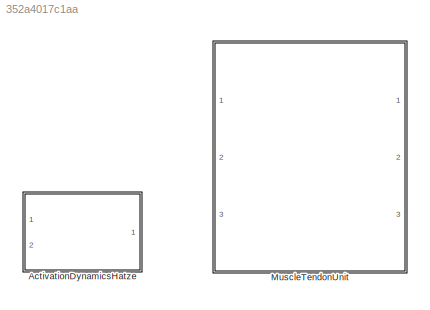
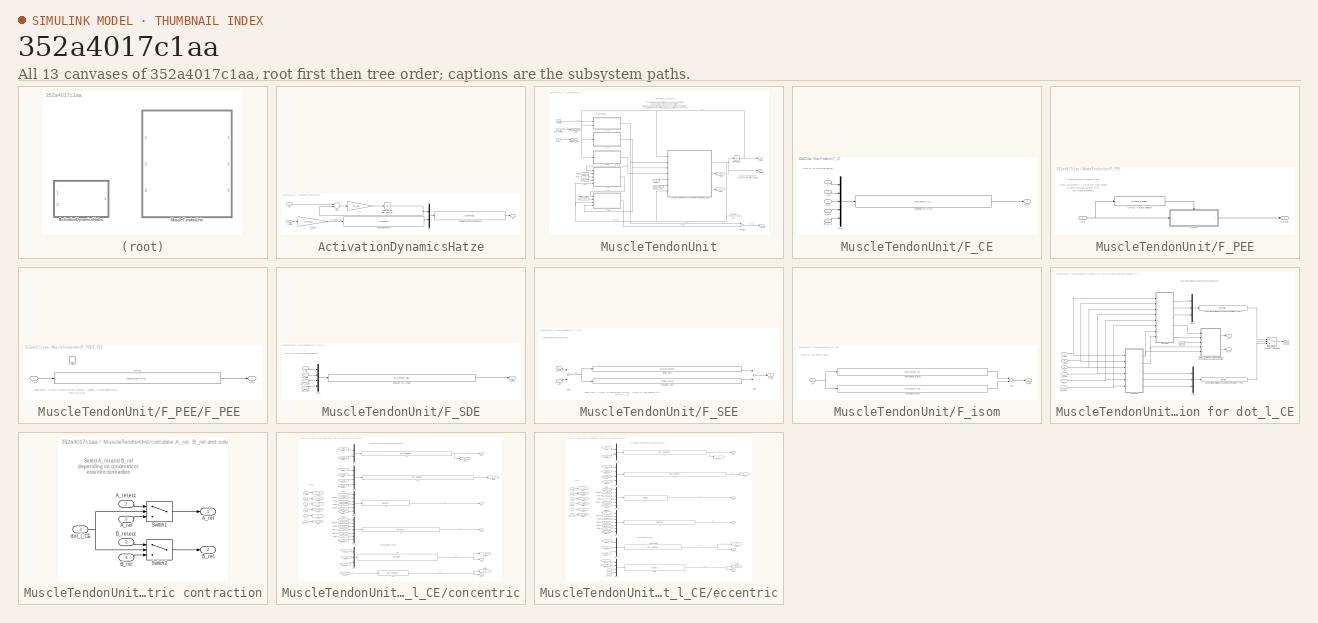
[diagram: thumbnail index - all 13 canvases of the model, root first then tree order]
MODEL slx_352a4017c1aa
KIND library
CONFIG AbsTol = auto
CONFIG EnableMultiTasking = on
CONFIG FixedStep = auto
CONFIG MaxStep = auto
CONFIG MinStep = auto
CONFIG RelTol = 1e-3
CONFIG SampleTimeConstraint = Unconstrained
CONFIG Solver = VariableStepAuto
CONFIG SolverName = VariableStepAuto
CONFIG StartTime = 0.0
CONFIG StopTime = 10.0
BLOCK [SubSystem] ActivationDynamicsHatze
  Ports = [2, 1]
  RequestExecContextInheritance = off
BLOCK [Gain] ActivationDynamicsHatze/1//l_CEopt
  Gain = 1/Mus_Param.CE.l_CEopt
  OutDataTypeStr = Inherit: Inherit via internal rule
  ParamDataTypeStr = Inherit: Inherit via internal rule
  SaturateOnIntegerOverflow = off
BLOCK [Sum] ActivationDynamicsHatze/Add1
  InputSameDT = off
  Inputs = +-
  OutDataTypeStr = Inherit: Inherit via internal rule
  Ports = [2, 1]
  SaturateOnIntegerOverflow = off
BLOCK [Fcn] ActivationDynamicsHatze/Funktion zur Berechnung von a
  Expr = (Act_Param.q_0+(u(2)*u(1))^Act_Param.nu) / (1+(u(2)*u(1))^Act_Param.nu)
BLOCK [Fcn] ActivationDynamicsHatze/Help function for Rho
  Expr = ( (Act_Param.c*Act_Param.eta*(Act_Param.k-1) ) / (Act_Param.k-u) ) * u
BLOCK [Integrator] ActivationDynamicsHatze/Integrator with initial condition u_init
  InitialCondition = Act_Param.u_init
  Ports = [1, 1]
BLOCK [Mux] ActivationDynamicsHatze/Mux
  DisplayOption = bar
  Inputs = 2
  Ports = [2, 1]
BLOCK [Outport] ActivationDynamicsHatze/a []
  IconDisplay = Port number
BLOCK [Inport] ActivationDynamicsHatze/l_CE [m]
  IconDisplay = Port number
  Port = 2
BLOCK [Gain] ActivationDynamicsHatze/m
  Gain = Act_Param.m
  OutDataTypeStr = Inherit: Inherit via internal rule
  ParamDataTypeStr = Inherit: Inherit via internal rule
  SaturateOnIntegerOverflow = off
BLOCK [Inport] ActivationDynamicsHatze/u []
  IconDisplay = Port number
BLOCK [SubSystem] MuscleTendonUnit
  Ports = [3, 3]
  RequestExecContextInheritance = off
BLOCK [SubSystem] MuscleTendonUnit/F_CE
  Ports = [5, 1]
  RequestExecContextInheritance = off
BLOCK [Inport] MuscleTendonUnit/F_CE/A_rel
  IconDisplay = Port number
  Port = 3
BLOCK [Inport] MuscleTendonUnit/F_CE/B_rel
  IconDisplay = Port number
  Port = 4
BLOCK [Outport] MuscleTendonUnit/F_CE/F_CE
  IconDisplay = Port number
BLOCK [Inport] MuscleTendonUnit/F_CE/F_isom
  IconDisplay = Port number
BLOCK [Mux] MuscleTendonUnit/F_CE/Mux
  DisplayOption = bar
  Inputs = 5
  Ports = [5, 1]
BLOCK [Inport] MuscleTendonUnit/F_CE/a
  IconDisplay = Port number
  Port = 2
BLOCK [Inport] MuscleTendonUnit/F_CE/dot_l_CE
  IconDisplay = Port number
  Port = 5
BLOCK [Fcn] MuscleTendonUnit/F_CE/equation for F_CE
  Expr = Mus_Param.CE.F_max * (  ( (u(1)*u(4)+u(2)) / ( 1- (u(5)/(u(3)*Mus_Param.CE.l_CEopt)) ) )-u(2) )
BLOCK [Outport] MuscleTendonUnit/F_MTU [N]
  IconDisplay = Port number
BLOCK [SubSystem] MuscleTendonUnit/F_PEE
  Ports = [1, 1]
  RequestExecContextInheritance = off
BLOCK [Outport] MuscleTendonUnit/F_PEE/F_PEE
  IconDisplay = Port number
BLOCK [SubSystem] MuscleTendonUnit/F_PEE/F_PEE 
  Ports = [1, 1, 1]
  RequestExecContextInheritance = off
BLOCK [EnablePort] MuscleTendonUnit/F_PEE/F_PEE /Enable
  Ports = []
  StatesWhenEnabling = reset
BLOCK [Fcn] MuscleTendonUnit/F_PEE/F_PEE /F_PEE 
  Expr = Mus_Param.PEE.K_PEE*abs(u-Mus_Param.PEE.l_PEE0)^(Mus_Param.PEE.v_PEE)
BLOCK [Outport] MuscleTendonUnit/F_PEE/F_PEE /Out1
  IconDisplay = Port number
  InitialOutput = 0
BLOCK [Inport] MuscleTendonUnit/F_PEE/F_PEE /l_PEE
  IconDisplay = Port number
BLOCK [Inport] MuscleTendonUnit/F_PEE/l_CE
  IconDisplay = Port number
BLOCK [Fcn] MuscleTendonUnit/F_PEE/l_PEE > slack length?
  Expr = (u>=Mus_Param.PEE.l_PEE0)
BLOCK [SubSystem] MuscleTendonUnit/F_SDE
  Ports = [4, 1]
  RequestExecContextInheritance = off
BLOCK [Inport] MuscleTendonUnit/F_SDE/F_CE
  IconDisplay = Port number
BLOCK [Inport] MuscleTendonUnit/F_SDE/F_PEE
  IconDisplay = Port number
  Port = 4
BLOCK [Outport] MuscleTendonUnit/F_SDE/F_SDE
  IconDisplay = Port number
BLOCK [Mux] MuscleTendonUnit/F_SDE/Mux
  DisplayOption = bar
  Ports = [4, 1]
BLOCK [Inport] MuscleTendonUnit/F_SDE/dot_l_CE
  IconDisplay = Port number
  Port = 3
BLOCK [Inport] MuscleTendonUnit/F_SDE/dot_l_MTC
  IconDisplay = Port number
  Port = 2
BLOCK [Fcn] MuscleTendonUnit/F_SDE/equation for F_SDE
  Expr = Mus_Param.SDE.d_SEmax*((1-Mus_Param.SDE.R_SE)*((u(1)+u(2))/Mus_Param.CE.F_max)+Mus_Param.SDE.R_SE)*(u(3)-u(4))
BLOCK [SubSystem] MuscleTendonUnit/F_SEE
  Ports = [2, 1]
  RequestExecContextInheritance = off
BLOCK [Sum] MuscleTendonUnit/F_SEE/Add
  InputSameDT = off
  OutDataTypeStr = Inherit: Inherit via internal rule
  Ports = [2, 1]
  SaturateOnIntegerOverflow = off
BLOCK [Sum] MuscleTendonUnit/F_SEE/Add1
  InputSameDT = off
  Inputs = +-
  OutDataTypeStr = Inherit: Inherit via internal rule
  Ports = [2, 1]
  SaturateOnIntegerOverflow = off
BLOCK [Outport] MuscleTendonUnit/F_SEE/F_SEE
  IconDisplay = Port number
BLOCK [Inport] MuscleTendonUnit/F_SEE/l_CE
  IconDisplay = Port number
  Port = 2
BLOCK [Inport] MuscleTendonUnit/F_SEE/l_MTC
  IconDisplay = Port number
BLOCK [Fcn] MuscleTendonUnit/F_SEE/linear part
  Expr = (u>=Mus_Param.SEE.l_SEEnll)   *   (Mus_Param.SEE.DeltaF_SEE0+Mus_Param.SEE.KSEEl*(u-Mus_Param.SEE.l_SEEnll))
BLOCK [Fcn] MuscleTendonUnit/F_SEE/non-linear part
  Expr = (u>Mus_Param.SEE.l_SEE0)*(u<Mus_Param.SEE.l_SEEnll)  *  Mus_Param.SEE.KSEEnl*(abs(u-Mus_Param.SEE.l_SEE0)^(Mus_Param.SEE.v_SEE))
BLOCK [SubSystem] MuscleTendonUnit/F_isom
  Ports = [1, 1]
  RequestExecContextInheritance = off
BLOCK [Sum] MuscleTendonUnit/F_isom/Add
  InputSameDT = off
  OutDataTypeStr = Inherit: Inherit via internal rule
  Ports = [2, 1]
  SaturateOnIntegerOverflow = off
BLOCK [Outport] MuscleTendonUnit/F_isom/F_isom
  IconDisplay = Port number
BLOCK [Fcn] MuscleTendonUnit/F_isom/ascending branch
  Expr = (Mus_Param.CE.l_CEopt>u)   *   ( exp( -( abs(  ((u/Mus_Param.CE.l_CEopt)-1)/Mus_Param.CE.DeltaW_limb_asc  ) )^Mus_Param.CE.v_CElimb_asc ) )
BLOCK [Fcn] MuscleTendonUnit/F_isom/descending branch
  Expr = (Mus_Param.CE.l_CEopt<=u)   *   ( exp( -( abs(  ((u/Mus_Param.CE.l_CEopt)-1)/Mus_Param.CE.DeltaW_limb_des  ) )^Mus_Param.CE.v_CElimb_des ) )
BLOCK [Inport] MuscleTendonUnit/F_isom/l_CE
  IconDisplay = Port number
BLOCK [From] MuscleTendonUnit/From
  GotoTag = A_rel
BLOCK [From] MuscleTendonUnit/From dot_l_MTC
  GotoTag = dot_l_MTC
BLOCK [From] MuscleTendonUnit/From dot_l_MTC1
  GotoTag = dot_l_MTC
BLOCK [From] MuscleTendonUnit/From q
  GotoTag = a
BLOCK [From] MuscleTendonUnit/From q1
  GotoTag = a
BLOCK [From] MuscleTendonUnit/From1
  GotoTag = B_rel
BLOCK [Goto] MuscleTendonUnit/Goto
  GotoTag = A_rel
BLOCK [Goto] MuscleTendonUnit/Goto dot_l_MTC
  GotoTag = a
BLOCK [Goto] MuscleTendonUnit/Goto q
  GotoTag = dot_l_MTC
BLOCK [Goto] MuscleTendonUnit/Goto1
  GotoTag = B_rel
BLOCK [Integrator] MuscleTendonUnit/Integrator l_CE
  InitialCondition = Mus_Param.CE.l_CE_init
  Ports = [1, 1]
BLOCK [Sum] MuscleTendonUnit/MTC force
  InputSameDT = off
  OutDataTypeStr = Inherit: Inherit via internal rule
  Ports = [2, 1]
  SaturateOnIntegerOverflow = off
BLOCK [Inport] MuscleTendonUnit/a []
  IconDisplay = Port number
  Port = 3
BLOCK [SubSystem] MuscleTendonUnit/calculate A_rel, B_rel and solve quadratic equation for dot_l_CE
  Ports = [7, 3]
  RequestExecContextInheritance = off
BLOCK [Outport] MuscleTendonUnit/calculate A_rel, B_rel and solve quadratic equation for dot_l_CE/A_rel
  IconDisplay = Port number
  Port = 2
BLOCK [Outport] MuscleTendonUnit/calculate A_rel, B_rel and solve quadratic equation for dot_l_CE/B_rel
  IconDisplay = Port number
  Port = 3
BLOCK [Inport] MuscleTendonUnit/calculate A_rel, B_rel and solve quadratic equation for dot_l_CE/F_PEE
  IconDisplay = Port number
  Port = 3
BLOCK [Inport] MuscleTendonUnit/calculate A_rel, B_rel and solve quadratic equation for dot_l_CE/F_SEE
  IconDisplay = Port number
  Port = 2
BLOCK [Inport] MuscleTendonUnit/calculate A_rel, B_rel and solve quadratic equation for dot_l_CE/F_isom
  IconDisplay = Port number
  Port = 4
BLOCK [Mux] MuscleTendonUnit/calculate A_rel, B_rel and solve quadratic equation for dot_l_CE/Mux1
  DisplayOption = bar
  Inputs = 3
  Ports = [3, 1]
BLOCK [Mux] MuscleTendonUnit/calculate A_rel, B_rel and solve quadratic equation for dot_l_CE/Mux2
  DisplayOption = bar
  Inputs = 3
  Ports = [3, 1]
BLOCK [SubSystem] MuscleTendonUnit/calculate A_rel, B_rel and solve quadratic equation for dot_l_CE/Select A_rel and B_rel depending on concentric or eccentric contraction
  Ports = [5, 2]
  RequestExecContextInheritance = off
BLOCK [Outport] MuscleTendonUnit/calculate A_rel, B_rel and solve quadratic equation for dot_l_CE/Select A_rel and B_rel depending on concentric or eccentric contraction/ A_rel
  IconDisplay = Port number
BLOCK [Inport] MuscleTendonUnit/calculate A_rel, B_rel and solve quadratic equation for dot_l_CE/Select A_rel and B_rel depending on concentric or eccentric contraction/A_rel
  IconDisplay = Port number
  Port = 5
BLOCK [Inport] MuscleTendonUnit/calculate A_rel, B_rel and solve quadratic equation for dot_l_CE/Select A_rel and B_rel depending on concentric or eccentric contraction/A_rel,ecc
  IconDisplay = Port number
BLOCK [Inport] MuscleTendonUnit/calculate A_rel, B_rel and solve quadratic equation for dot_l_CE/Select A_rel and B_rel depending on concentric or eccentric contraction/B_rel
  IconDisplay = Port number
  Port = 4
BLOCK [Outport] MuscleTendonUnit/calculate A_rel, B_rel and solve quadratic equation for dot_l_CE/Select A_rel and B_rel depending on concentric or eccentric contraction/B_rel 
  IconDisplay = Port number
  Port = 2
BLOCK [Inport] MuscleTendonUnit/calculate A_rel, B_rel and solve quadratic equation for dot_l_CE/Select A_rel and B_rel depending on concentric or eccentric contraction/B_rel,ecc
  IconDisplay = Port number
  Port = 2
BLOCK [Switch] MuscleTendonUnit/calculate A_rel, B_rel and solve quadratic equation for dot_l_CE/Select A_rel and B_rel depending on concentric or eccentric contraction/Switch1
  Criteria = u2 > Threshold
  InputSameDT = off
  SaturateOnIntegerOverflow = off
  ZeroCross = off
BLOCK [Switch] MuscleTendonUnit/calculate A_rel, B_rel and solve quadratic equation for dot_l_CE/Select A_rel and B_rel depending on concentric or eccentric contraction/Switch2
  Criteria = u2 > Threshold
  InputSameDT = off
  SaturateOnIntegerOverflow = off
  ZeroCross = off
BLOCK [Inport] MuscleTendonUnit/calculate A_rel, B_rel and solve quadratic equation for dot_l_CE/Select A_rel and B_rel depending on concentric or eccentric contraction/dot_l_CE
  IconDisplay = Port number
  Port = 3
BLOCK [Inport] MuscleTendonUnit/calculate A_rel, B_rel and solve quadratic equation for dot_l_CE/a 
  IconDisplay = Port number
  Port = 5
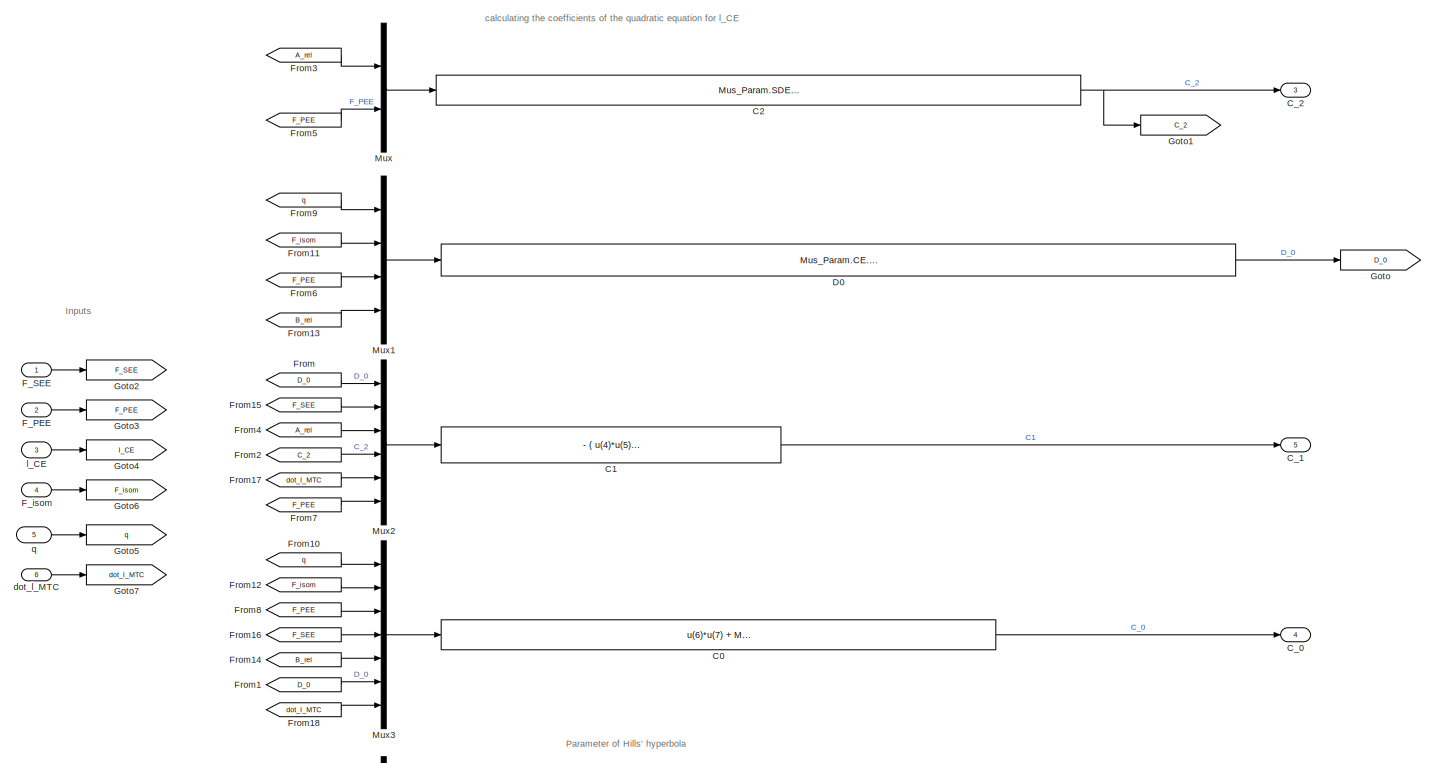
[diagram: MuscleTendonUnit/calculate A_rel, B_rel and solve quadratic equation for dot_l_CE/concentric - part 1/2, most of the canvas]
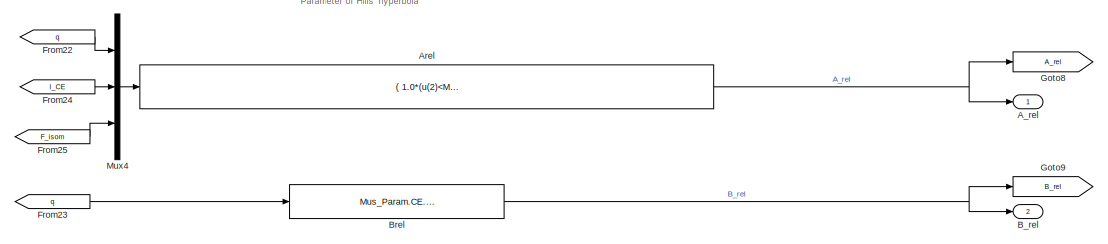
[diagram: MuscleTendonUnit/calculate A_rel, B_rel and solve quadratic equation for dot_l_CE/concentric - part 2/2, full width, bottom band]
BLOCK [SubSystem] MuscleTendonUnit/calculate A_rel, B_rel and solve quadratic equation for dot_l_CE/concentric
  Ports = [6, 5]
  RequestExecContextInheritance = off
BLOCK [Outport] MuscleTendonUnit/calculate A_rel, B_rel and solve quadratic equation for dot_l_CE/concentric/A_rel
  IconDisplay = Port number
BLOCK [Fcn] MuscleTendonUnit/calculate A_rel, B_rel and solve quadratic equation for dot_l_CE/concentric/Arel
  Expr = ( 1.0*(u(2)<Mus_Param.CE.l_CEopt) + u(3)*(u(2)>=Mus_Param.CE.l_CEopt) )*Mus_Param.CE.A_rel0*1/4*(1+3*u(1))
BLOCK [Outport] MuscleTendonUnit/calculate A_rel, B_rel and solve quadratic equation for dot_l_CE/concentric/B_rel
  IconDisplay = Port number
  Port = 2
BLOCK [Fcn] MuscleTendonUnit/calculate A_rel, B_rel and solve quadratic equation for dot_l_CE/concentric/Brel
  Expr = Mus_Param.CE.B_rel0*1*1/7*(3+4*u)
BLOCK [Fcn] MuscleTendonUnit/calculate A_rel, B_rel and solve quadratic equation for dot_l_CE/concentric/C0
  Expr = u(6)*u(7) + Mus_Param.CE.l_CEopt * u(5) * ( u(4) - u(3) - Mus_Param.CE.F_max*u(1)*u(2) )
BLOCK [Fcn] MuscleTendonUnit/calculate A_rel, B_rel and solve quadratic equation for dot_l_CE/concentric/C1
  Expr = - ( u(4)*u(5) + u(1) + u(2) - u(6) + (Mus_Param.CE.F_max*u(3)) )
BLOCK [Fcn] MuscleTendonUnit/calculate A_rel, B_rel and solve quadratic equation for dot_l_CE/concentric/C2
  Expr = Mus_Param.SDE.d_SEmax * ( Mus_Param.SDE.R_SE - ( u(1) - u(2)/Mus_Param.CE.F_max ) * (1 - Mus_Param.SDE.R_SE) )
BLOCK [Outport] MuscleTendonUnit/calculate A_rel, B_rel and solve quadratic equation for dot_l_CE/concentric/C_0 
  IconDisplay = Port number
  Port = 4
BLOCK [Outport] MuscleTendonUnit/calculate A_rel, B_rel and solve quadratic equation for dot_l_CE/concentric/C_1 
  IconDisplay = Port number
  Port = 5
BLOCK [Outport] MuscleTendonUnit/calculate A_rel, B_rel and solve quadratic equation for dot_l_CE/concentric/C_2 
  IconDisplay = Port number
  Port = 3
BLOCK [Fcn] MuscleTendonUnit/calculate A_rel, B_rel and solve quadratic equation for dot_l_CE/concentric/D0 
  Expr = Mus_Param.CE.l_CEopt * u(4) * Mus_Param.SDE.d_SEmax * ( Mus_Param.SDE.R_SE + (1-Mus_Param.SDE.R_SE) * ( u(1) * u(2) + u(3)/Mus_Param.CE.F_max ) )
BLOCK [Inport] MuscleTendonUnit/calculate A_rel, B_rel and solve quadratic equation for dot_l_CE/concentric/F_PEE
  IconDisplay = Port number
  Port = 2
BLOCK [Inport] MuscleTendonUnit/calculate A_rel, B_rel and solve quadratic equation for dot_l_CE/concentric/F_SEE
  IconDisplay = Port number
BLOCK [Inport] MuscleTendonUnit/calculate A_rel, B_rel and solve quadratic equation for dot_l_CE/concentric/F_isom
  IconDisplay = Port number
  Port = 4
BLOCK [From] MuscleTendonUnit/calculate A_rel, B_rel and solve quadratic equation for dot_l_CE/concentric/From
  GotoTag = D_0
BLOCK [From] MuscleTendonUnit/calculate A_rel, B_rel and solve quadratic equation for dot_l_CE/concentric/From1
  GotoTag = D_0
BLOCK [From] MuscleTendonUnit/calculate A_rel, B_rel and solve quadratic equation for dot_l_CE/concentric/From10
  GotoTag = q
BLOCK [From] MuscleTendonUnit/calculate A_rel, B_rel and solve quadratic equation for dot_l_CE/concentric/From11
  GotoTag = F_isom
BLOCK [From] MuscleTendonUnit/calculate A_rel, B_rel and solve quadratic equation for dot_l_CE/concentric/From12
  GotoTag = F_isom
BLOCK [From] MuscleTendonUnit/calculate A_rel, B_rel and solve quadratic equation for dot_l_CE/concentric/From13
  GotoTag = B_rel
BLOCK [From] MuscleTendonUnit/calculate A_rel, B_rel and solve quadratic equation for dot_l_CE/concentric/From14
  GotoTag = B_rel
BLOCK [From] MuscleTendonUnit/calculate A_rel, B_rel and solve quadratic equation for dot_l_CE/concentric/From15
  GotoTag = F_SEE
BLOCK [From] MuscleTendonUnit/calculate A_rel, B_rel and solve quadratic equation for dot_l_CE/concentric/From16
  GotoTag = F_SEE
BLOCK [From] MuscleTendonUnit/calculate A_rel, B_rel and solve quadratic equation for dot_l_CE/concentric/From17
  GotoTag = dot_l_MTC
BLOCK [From] MuscleTendonUnit/calculate A_rel, B_rel and solve quadratic equation for dot_l_CE/concentric/From18
  GotoTag = dot_l_MTC
BLOCK [From] MuscleTendonUnit/calculate A_rel, B_rel and solve quadratic equation for dot_l_CE/concentric/From2
  GotoTag = C_2
BLOCK [From] MuscleTendonUnit/calculate A_rel, B_rel and solve quadratic equation for dot_l_CE/concentric/From22
  GotoTag = q
BLOCK [From] MuscleTendonUnit/calculate A_rel, B_rel and solve quadratic equation for dot_l_CE/concentric/From23
  GotoTag = q
BLOCK [From] MuscleTendonUnit/calculate A_rel, B_rel and solve quadratic equation for dot_l_CE/concentric/From24
  GotoTag = l_CE
BLOCK [From] MuscleTendonUnit/calculate A_rel, B_rel and solve quadratic equation for dot_l_CE/concentric/From25
  GotoTag = F_isom
BLOCK [From] MuscleTendonUnit/calculate A_rel, B_rel and solve quadratic equation for dot_l_CE/concentric/From3
  GotoTag = A_rel
BLOCK [From] MuscleTendonUnit/calculate A_rel, B_rel and solve quadratic equation for dot_l_CE/concentric/From4
  GotoTag = A_rel
BLOCK [From] MuscleTendonUnit/calculate A_rel, B_rel and solve quadratic equation for dot_l_CE/concentric/From5
  GotoTag = F_PEE
BLOCK [From] MuscleTendonUnit/calculate A_rel, B_rel and solve quadratic equation for dot_l_CE/concentric/From6
  GotoTag = F_PEE
BLOCK [From] MuscleTendonUnit/calculate A_rel, B_rel and solve quadratic equation for dot_l_CE/concentric/From7
  GotoTag = F_PEE
BLOCK [From] MuscleTendonUnit/calculate A_rel, B_rel and solve quadratic equation for dot_l_CE/concentric/From8
  GotoTag = F_PEE
BLOCK [From] MuscleTendonUnit/calculate A_rel, B_rel and solve quadratic equation for dot_l_CE/concentric/From9
  GotoTag = q
BLOCK [Goto] MuscleTendonUnit/calculate A_rel, B_rel and solve quadratic equation for dot_l_CE/concentric/Goto
  GotoTag = D_0
BLOCK [Goto] MuscleTendonUnit/calculate A_rel, B_rel and solve quadratic equation for dot_l_CE/concentric/Goto1
  GotoTag = C_2
BLOCK [Goto] MuscleTendonUnit/calculate A_rel, B_rel and solve quadratic equation for dot_l_CE/concentric/Goto2
  GotoTag = F_SEE
BLOCK [Goto] MuscleTendonUnit/calculate A_rel, B_rel and solve quadratic equation for dot_l_CE/concentric/Goto3
  GotoTag = F_PEE
BLOCK [Goto] MuscleTendonUnit/calculate A_rel, B_rel and solve quadratic equation for dot_l_CE/concentric/Goto4
  GotoTag = l_CE
BLOCK [Goto] MuscleTendonUnit/calculate A_rel, B_rel and solve quadratic equation for dot_l_CE/concentric/Goto5
  GotoTag = q
BLOCK [Goto] MuscleTendonUnit/calculate A_rel, B_rel and solve quadratic equation for dot_l_CE/concentric/Goto6
  GotoTag = F_isom
BLOCK [Goto] MuscleTendonUnit/calculate A_rel, B_rel and solve quadratic equation for dot_l_CE/concentric/Goto7
  GotoTag = dot_l_MTC
BLOCK [Goto] MuscleTendonUnit/calculate A_rel, B_rel and solve quadratic equation for dot_l_CE/concentric/Goto8
  GotoTag = A_rel
BLOCK [Goto] MuscleTendonUnit/calculate A_rel, B_rel and solve quadratic equation for dot_l_CE/concentric/Goto9
  GotoTag = B_rel
BLOCK [Mux] MuscleTendonUnit/calculate A_rel, B_rel and solve quadratic equation for dot_l_CE/concentric/Mux
  DisplayOption = bar
  Inputs = 2
  Ports = [2, 1]
BLOCK [Mux] MuscleTendonUnit/calculate A_rel, B_rel and solve quadratic equation for dot_l_CE/concentric/Mux1
  DisplayOption = bar
  Ports = [4, 1]
BLOCK [Mux] MuscleTendonUnit/calculate A_rel, B_rel and solve quadratic equation for dot_l_CE/concentric/Mux2
  DisplayOption = bar
  Inputs = 6
  Ports = [6, 1]
BLOCK [Mux] MuscleTendonUnit/calculate A_rel, B_rel and solve quadratic equation for dot_l_CE/concentric/Mux3
  DisplayOption = bar
  Inputs = 7
  Ports = [7, 1]
BLOCK [Mux] MuscleTendonUnit/calculate A_rel, B_rel and solve quadratic equation for dot_l_CE/concentric/Mux4
  DisplayOption = bar
  Inputs = 3
  Ports = [3, 1]
BLOCK [Inport] MuscleTendonUnit/calculate A_rel, B_rel and solve quadratic equation for dot_l_CE/concentric/dot_l_MTC
  IconDisplay = Port number
  Port = 6
BLOCK [Inport] MuscleTendonUnit/calculate A_rel, B_rel and solve quadratic equation for dot_l_CE/concentric/l_CE
  IconDisplay = Port number
  Port = 3
BLOCK [Inport] MuscleTendonUnit/calculate A_rel, B_rel and solve quadratic equation for dot_l_CE/concentric/q
  IconDisplay = Port number
  Port = 5
BLOCK [Inport] MuscleTendonUnit/calculate A_rel, B_rel and solve quadratic equation for dot_l_CE/dot_l_CE
  IconDisplay = Port number
  Port = 7
BLOCK [Outport] MuscleTendonUnit/calculate A_rel, B_rel and solve quadratic equation for dot_l_CE/dot_l_CE 
  IconDisplay = Port number
BLOCK [Switch] MuscleTendonUnit/calculate A_rel, B_rel and solve quadratic equation for dot_l_CE/dot_l_CE > 0 -> eccentric contraction
  Criteria = u2 > Threshold
  InputSameDT = off
  SaturateOnIntegerOverflow = off
  ZeroCross = off
BLOCK [Inport] MuscleTendonUnit/calculate A_rel, B_rel and solve quadratic equation for dot_l_CE/dot_l_MTC
  IconDisplay = Port number
  Port = 6
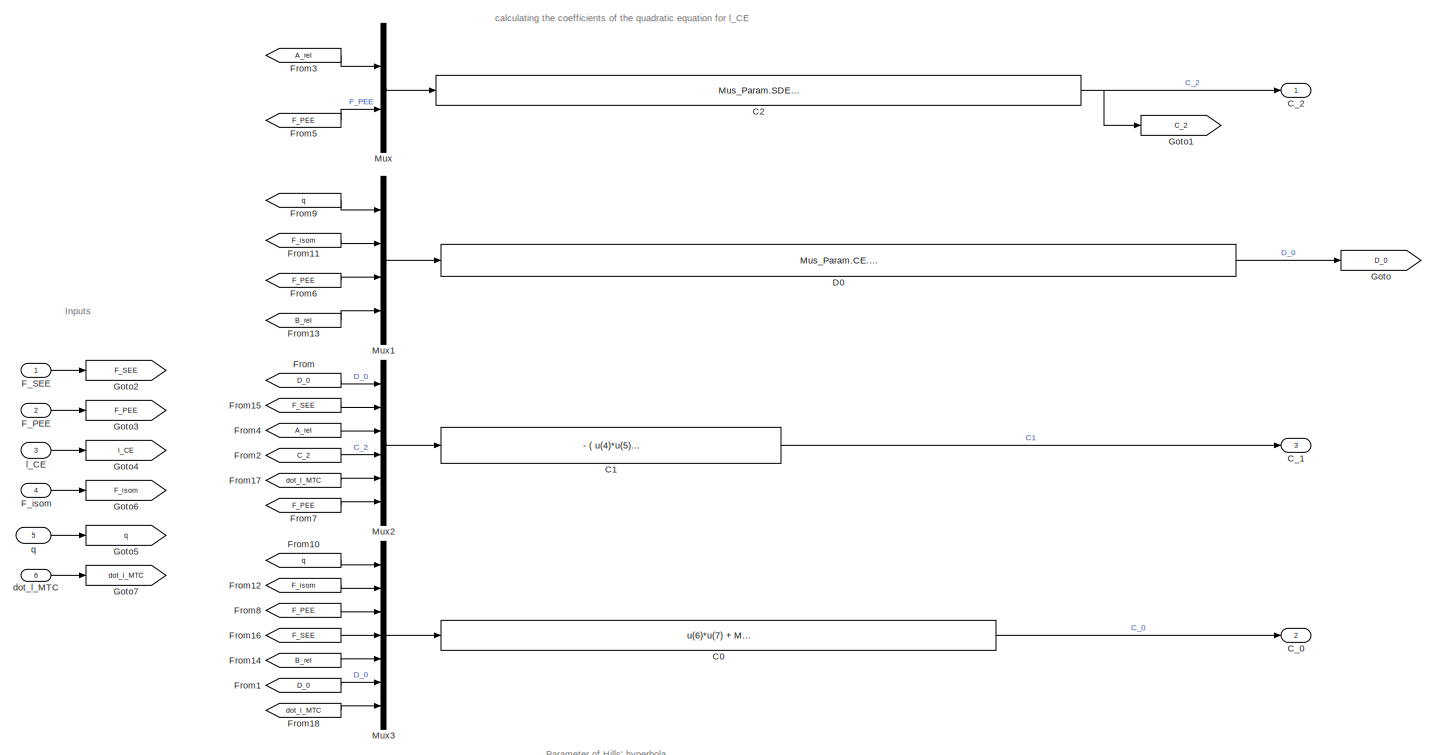
[diagram: MuscleTendonUnit/calculate A_rel, B_rel and solve quadratic equation for dot_l_CE/eccentric - part 1/2, full width, middle band]
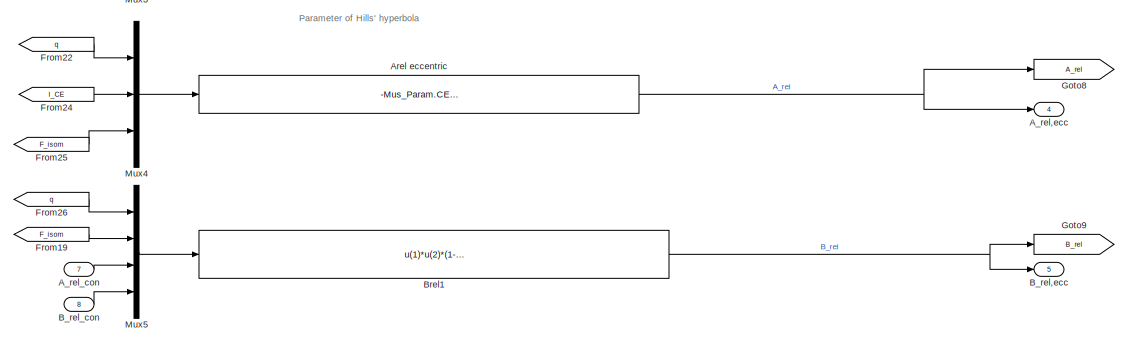
[diagram: MuscleTendonUnit/calculate A_rel, B_rel and solve quadratic equation for dot_l_CE/eccentric - part 2/2, full width, bottom band]
BLOCK [SubSystem] MuscleTendonUnit/calculate A_rel, B_rel and solve quadratic equation for dot_l_CE/eccentric
  Ports = [8, 5]
  RequestExecContextInheritance = off
BLOCK [Outport] MuscleTendonUnit/calculate A_rel, B_rel and solve quadratic equation for dot_l_CE/eccentric/A_rel,ecc
  IconDisplay = Port number
  Port = 4
BLOCK [Inport] MuscleTendonUnit/calculate A_rel, B_rel and solve quadratic equation for dot_l_CE/eccentric/A_rel_con
  IconDisplay = Port number
  Port = 7
BLOCK [Fcn] MuscleTendonUnit/calculate A_rel, B_rel and solve quadratic equation for dot_l_CE/eccentric/Arel eccentric
  Expr = -Mus_Param.CE.F_eccentric*u(1)*u(3)
BLOCK [Outport] MuscleTendonUnit/calculate A_rel, B_rel and solve quadratic equation for dot_l_CE/eccentric/B_rel,ecc
  IconDisplay = Port number
  Port = 5
BLOCK [Inport] MuscleTendonUnit/calculate A_rel, B_rel and solve quadratic equation for dot_l_CE/eccentric/B_rel_con
  IconDisplay = Port number
  Port = 8
BLOCK [Fcn] MuscleTendonUnit/calculate A_rel, B_rel and solve quadratic equation for dot_l_CE/eccentric/Brel1
  Expr = u(1)*u(2)*(1-Mus_Param.CE.F_eccentric)/(u(1)*u(2)+u(3))*u(4)/Mus_Param.CE.S_eccentric
BLOCK [Fcn] MuscleTendonUnit/calculate A_rel, B_rel and solve quadratic equation for dot_l_CE/eccentric/C0
  Expr = u(6)*u(7) + Mus_Param.CE.l_CEopt * u(5) * ( u(4) - u(3) - Mus_Param.CE.F_max*u(1)*u(2) )
BLOCK [Fcn] MuscleTendonUnit/calculate A_rel, B_rel and solve quadratic equation for dot_l_CE/eccentric/C1
  Expr = - ( u(4)*u(5) + u(1) + u(2) - u(6) + (Mus_Param.CE.F_max*u(3)) )
BLOCK [Fcn] MuscleTendonUnit/calculate A_rel, B_rel and solve quadratic equation for dot_l_CE/eccentric/C2
  Expr = Mus_Param.SDE.d_SEmax * ( Mus_Param.SDE.R_SE - ( u(1) - u(2)/Mus_Param.CE.F_max ) * (1 - Mus_Param.SDE.R_SE) )
BLOCK [Outport] MuscleTendonUnit/calculate A_rel, B_rel and solve quadratic equation for dot_l_CE/eccentric/C_0
  IconDisplay = Port number
  Port = 2
BLOCK [Outport] MuscleTendonUnit/calculate A_rel, B_rel and solve quadratic equation for dot_l_CE/eccentric/C_1
  IconDisplay = Port number
  Port = 3
BLOCK [Outport] MuscleTendonUnit/calculate A_rel, B_rel and solve quadratic equation for dot_l_CE/eccentric/C_2
  IconDisplay = Port number
BLOCK [Fcn] MuscleTendonUnit/calculate A_rel, B_rel and solve quadratic equation for dot_l_CE/eccentric/D0 
  Expr = Mus_Param.CE.l_CEopt * u(4) * Mus_Param.SDE.d_SEmax * ( Mus_Param.SDE.R_SE + (1-Mus_Param.SDE.R_SE) * ( u(1) * u(2) + u(3)/Mus_Param.CE.F_max ) )
BLOCK [Inport] MuscleTendonUnit/calculate A_rel, B_rel and solve quadratic equation for dot_l_CE/eccentric/F_PEE
  IconDisplay = Port number
  Port = 2
BLOCK [Inport] MuscleTendonUnit/calculate A_rel, B_rel and solve quadratic equation for dot_l_CE/eccentric/F_SEE
  IconDisplay = Port number
BLOCK [Inport] MuscleTendonUnit/calculate A_rel, B_rel and solve quadratic equation for dot_l_CE/eccentric/F_isom
  IconDisplay = Port number
  Port = 4
BLOCK [From] MuscleTendonUnit/calculate A_rel, B_rel and solve quadratic equation for dot_l_CE/eccentric/From
  GotoTag = D_0
BLOCK [From] MuscleTendonUnit/calculate A_rel, B_rel and solve quadratic equation for dot_l_CE/eccentric/From1
  GotoTag = D_0
BLOCK [From] MuscleTendonUnit/calculate A_rel, B_rel and solve quadratic equation for dot_l_CE/eccentric/From10
  GotoTag = q
BLOCK [From] MuscleTendonUnit/calculate A_rel, B_rel and solve quadratic equation for dot_l_CE/eccentric/From11
  GotoTag = F_isom
BLOCK [From] MuscleTendonUnit/calculate A_rel, B_rel and solve quadratic equation for dot_l_CE/eccentric/From12
  GotoTag = F_isom
BLOCK [From] MuscleTendonUnit/calculate A_rel, B_rel and solve quadratic equation for dot_l_CE/eccentric/From13
  GotoTag = B_rel
BLOCK [From] MuscleTendonUnit/calculate A_rel, B_rel and solve quadratic equation for dot_l_CE/eccentric/From14
  GotoTag = B_rel
BLOCK [From] MuscleTendonUnit/calculate A_rel, B_rel and solve quadratic equation for dot_l_CE/eccentric/From15
  GotoTag = F_SEE
BLOCK [From] MuscleTendonUnit/calculate A_rel, B_rel and solve quadratic equation for dot_l_CE/eccentric/From16
  GotoTag = F_SEE
BLOCK [From] MuscleTendonUnit/calculate A_rel, B_rel and solve quadratic equation for dot_l_CE/eccentric/From17
  GotoTag = dot_l_MTC
BLOCK [From] MuscleTendonUnit/calculate A_rel, B_rel and solve quadratic equation for dot_l_CE/eccentric/From18
  GotoTag = dot_l_MTC
BLOCK [From] MuscleTendonUnit/calculate A_rel, B_rel and solve quadratic equation for dot_l_CE/eccentric/From19
  GotoTag = F_isom
BLOCK [From] MuscleTendonUnit/calculate A_rel, B_rel and solve quadratic equation for dot_l_CE/eccentric/From2
  GotoTag = C_2
BLOCK [From] MuscleTendonUnit/calculate A_rel, B_rel and solve quadratic equation for dot_l_CE/eccentric/From22
  GotoTag = q
BLOCK [From] MuscleTendonUnit/calculate A_rel, B_rel and solve quadratic equation for dot_l_CE/eccentric/From24
  GotoTag = l_CE
BLOCK [From] MuscleTendonUnit/calculate A_rel, B_rel and solve quadratic equation for dot_l_CE/eccentric/From25
  GotoTag = F_isom
BLOCK [From] MuscleTendonUnit/calculate A_rel, B_rel and solve quadratic equation for dot_l_CE/eccentric/From26
  GotoTag = q
BLOCK [From] MuscleTendonUnit/calculate A_rel, B_rel and solve quadratic equation for dot_l_CE/eccentric/From3
  GotoTag = A_rel
BLOCK [From] MuscleTendonUnit/calculate A_rel, B_rel and solve quadratic equation for dot_l_CE/eccentric/From4
  GotoTag = A_rel
BLOCK [From] MuscleTendonUnit/calculate A_rel, B_rel and solve quadratic equation for dot_l_CE/eccentric/From5
  GotoTag = F_PEE
BLOCK [From] MuscleTendonUnit/calculate A_rel, B_rel and solve quadratic equation for dot_l_CE/eccentric/From6
  GotoTag = F_PEE
BLOCK [From] MuscleTendonUnit/calculate A_rel, B_rel and solve quadratic equation for dot_l_CE/eccentric/From7
  GotoTag = F_PEE
BLOCK [From] MuscleTendonUnit/calculate A_rel, B_rel and solve quadratic equation for dot_l_CE/eccentric/From8
  GotoTag = F_PEE
BLOCK [From] MuscleTendonUnit/calculate A_rel, B_rel and solve quadratic equation for dot_l_CE/eccentric/From9
  GotoTag = q
BLOCK [Goto] MuscleTendonUnit/calculate A_rel, B_rel and solve quadratic equation for dot_l_CE/eccentric/Goto
  GotoTag = D_0
BLOCK [Goto] MuscleTendonUnit/calculate A_rel, B_rel and solve quadratic equation for dot_l_CE/eccentric/Goto1
  GotoTag = C_2
BLOCK [Goto] MuscleTendonUnit/calculate A_rel, B_rel and solve quadratic equation for dot_l_CE/eccentric/Goto2
  GotoTag = F_SEE
BLOCK [Goto] MuscleTendonUnit/calculate A_rel, B_rel and solve quadratic equation for dot_l_CE/eccentric/Goto3
  GotoTag = F_PEE
BLOCK [Goto] MuscleTendonUnit/calculate A_rel, B_rel and solve quadratic equation for dot_l_CE/eccentric/Goto4
  GotoTag = l_CE
BLOCK [Goto] MuscleTendonUnit/calculate A_rel, B_rel and solve quadratic equation for dot_l_CE/eccentric/Goto5
  GotoTag = q
BLOCK [Goto] MuscleTendonUnit/calculate A_rel, B_rel and solve quadratic equation for dot_l_CE/eccentric/Goto6
  GotoTag = F_isom
BLOCK [Goto] MuscleTendonUnit/calculate A_rel, B_rel and solve quadratic equation for dot_l_CE/eccentric/Goto7
  GotoTag = dot_l_MTC
BLOCK [Goto] MuscleTendonUnit/calculate A_rel, B_rel and solve quadratic equation for dot_l_CE/eccentric/Goto8
  GotoTag = A_rel
BLOCK [Goto] MuscleTendonUnit/calculate A_rel, B_rel and solve quadratic equation for dot_l_CE/eccentric/Goto9
  GotoTag = B_rel
BLOCK [Mux] MuscleTendonUnit/calculate A_rel, B_rel and solve quadratic equation for dot_l_CE/eccentric/Mux
  DisplayOption = bar
  Inputs = 2
  Ports = [2, 1]
BLOCK [Mux] MuscleTendonUnit/calculate A_rel, B_rel and solve quadratic equation for dot_l_CE/eccentric/Mux1
  DisplayOption = bar
  Ports = [4, 1]
BLOCK [Mux] MuscleTendonUnit/calculate A_rel, B_rel and solve quadratic equation for dot_l_CE/eccentric/Mux2
  DisplayOption = bar
  Inputs = 6
  Ports = [6, 1]
BLOCK [Mux] MuscleTendonUnit/calculate A_rel, B_rel and solve quadratic equation for dot_l_CE/eccentric/Mux3
  DisplayOption = bar
  Inputs = 7
  Ports = [7, 1]
BLOCK [Mux] MuscleTendonUnit/calculate A_rel, B_rel and solve quadratic equation for dot_l_CE/eccentric/Mux4
  DisplayOption = bar
  Inputs = 3
  Ports = [3, 1]
BLOCK [Mux] MuscleTendonUnit/calculate A_rel, B_rel and solve quadratic equation for dot_l_CE/eccentric/Mux5
  DisplayOption = bar
  Ports = [4, 1]
BLOCK [Inport] MuscleTendonUnit/calculate A_rel, B_rel and solve quadratic equation for dot_l_CE/eccentric/dot_l_MTC
  IconDisplay = Port number
  Port = 6
BLOCK [Inport] MuscleTendonUnit/calculate A_rel, B_rel and solve quadratic equation for dot_l_CE/eccentric/l_CE
  IconDisplay = Port number
  Port = 3
BLOCK [Inport] MuscleTendonUnit/calculate A_rel, B_rel and solve quadratic equation for dot_l_CE/eccentric/q
  IconDisplay = Port number
  Port = 5
BLOCK [Inport] MuscleTendonUnit/calculate A_rel, B_rel and solve quadratic equation for dot_l_CE/l_CE
  IconDisplay = Port number
BLOCK [Fcn] MuscleTendonUnit/calculate A_rel, B_rel and solve quadratic equation for dot_l_CE/quadratic equation for concentric contractions (-sqrt)
  Expr = (-u(3)-sqrt(u(3)^2-4*u(1)*u(2)))/(2*u(1))
BLOCK [Fcn] MuscleTendonUnit/calculate A_rel, B_rel and solve quadratic equation for dot_l_CE/quadratic equation for eccentric contractions (+sqrt)
  Expr = (-u(3)+sqrt(u(3)^2-4*u(1)*u(2)))/(2*u(1))
BLOCK [Inport] MuscleTendonUnit/dot_l_MTU [m//s]
  IconDisplay = Port number
  Port = 2
BLOCK [Outport] MuscleTendonUnit/l_CE [m]
  IconDisplay = Port number
  Port = 2
BLOCK [Inport] MuscleTendonUnit/l_MTU [m]
  IconDisplay = Port number
BLOCK [Outport] MuscleTendonUnit/v_CE [m//s] 
  IconDisplay = Port number
  Port = 3
ANNOTATION MuscleTendonUnit: Calculation of forces
ANNOTATION MuscleTendonUnit: Model Version 1.23, 25.02.2014 If you use this model for scientific purposes, please cite our article: D.F.B. Haeufle, M. Günther, A. Bayer, S. Schmitt (2014) Hill-type muscle model with serial damping and eccentric force-velocity relation Journal of Biomechanics http://dx.doi.org/10.1016/j.jbiomech.2014.02.009 <copyright redacted>
ANNOTATION MuscleTendonUnit: added by Katrin Stollenmaier, 16.04.18 in order to use it in a controller
ANNOTATION MuscleTendonUnit: calculate the muscle tendon complex force
ANNOTATION MuscleTendonUnit/F_CE: force of the contractile element
ANNOTATION MuscleTendonUnit/F_PEE: Parallel elastic element force is only calculated if l_CE>PEE slack length to avoid complex numbers with non-integer exponents
ANNOTATION MuscleTendonUnit/F_PEE/F_PEE : Added "abs()" in order to avoid warning "Warning: Attempt to raise negative value to a non-integer power..." (Katrin 12.6.18)
ANNOTATION MuscleTendonUnit/F_SDE: force of the serial damping element
ANNOTATION MuscleTendonUnit/F_SEE: Added "abs()" in order to avoid warning "Warning: Attempt to raise negative value to a non-integer power..." (Katrin 12.6.18)
ANNOTATION MuscleTendonUnit/F_SEE: Series elastic element force
ANNOTATION MuscleTendonUnit/F_isom: isometric force-length relation
ANNOTATION MuscleTendonUnit/calculate A_rel, B_rel and solve quadratic equation for dot_l_CE: Quadratic equation for concentric and eccentric branch
ANNOTATION MuscleTendonUnit/calculate A_rel, B_rel and solve quadratic equation for dot_l_CE/Select A_rel and B_rel depending on concentric or eccentric contraction: Select A_rel and B_rel depending on concentric or eccentric contraction
ANNOTATION MuscleTendonUnit/calculate A_rel, B_rel and solve quadratic equation for dot_l_CE/concentric: Inputs
ANNOTATION MuscleTendonUnit/calculate A_rel, B_rel and solve quadratic equation for dot_l_CE/concentric: Parameter of Hills' hyperbola
ANNOTATION MuscleTendonUnit/calculate A_rel, B_rel and solve quadratic equation for dot_l_CE/concentric: calculating the coefficients of the quadratic equation for l_CE
ANNOTATION MuscleTendonUnit/calculate A_rel, B_rel and solve quadratic equation for dot_l_CE/eccentric: Inputs
ANNOTATION MuscleTendonUnit/calculate A_rel, B_rel and solve quadratic equation for dot_l_CE/eccentric: Parameter of Hills' hyperbola
ANNOTATION MuscleTendonUnit/calculate A_rel, B_rel and solve quadratic equation for dot_l_CE/eccentric: calculating the coefficients of the quadratic equation for l_CE
LINE ActivationDynamicsHatze/1//l_CEopt:1 -> ActivationDynamicsHatze/Help function for Rho:1
LINE ActivationDynamicsHatze/Add1:1 -> ActivationDynamicsHatze/m:1
LINE ActivationDynamicsHatze/Funktion zur Berechnung von a:1 -> ActivationDynamicsHatze/a []:1
LINE ActivationDynamicsHatze/Help function for Rho:1 -> ActivationDynamicsHatze/Mux:2
NET ActivationDynamicsHatze/Integrator with initial condition u_init:1 -> ActivationDynamicsHatze/Add1:2, ActivationDynamicsHatze/Mux:1
LINE ActivationDynamicsHatze/Mux:1 -> ActivationDynamicsHatze/Funktion zur Berechnung von a:1
LINE ActivationDynamicsHatze/l_CE [m]:1 -> ActivationDynamicsHatze/1//l_CEopt:1
LINE ActivationDynamicsHatze/m:1 -> ActivationDynamicsHatze/Integrator with initial condition u_init:1
LINE ActivationDynamicsHatze/u []:1 -> ActivationDynamicsHatze/Add1:1
LINE MuscleTendonUnit/F_CE/A_rel:1 -> MuscleTendonUnit/F_CE/Mux:2
LINE MuscleTendonUnit/F_CE/B_rel:1 -> MuscleTendonUnit/F_CE/Mux:3
LINE MuscleTendonUnit/F_CE/F_isom:1 -> MuscleTendonUnit/F_CE/Mux:4
LINE MuscleTendonUnit/F_CE/Mux:1 -> MuscleTendonUnit/F_CE/equation for F_CE:1
LINE MuscleTendonUnit/F_CE/a:1 -> MuscleTendonUnit/F_CE/Mux:1
LINE MuscleTendonUnit/F_CE/dot_l_CE:1 -> MuscleTendonUnit/F_CE/Mux:5
LINE MuscleTendonUnit/F_CE/equation for F_CE:1 -> MuscleTendonUnit/F_CE/F_CE:1
LINE MuscleTendonUnit/F_CE:1 -> MuscleTendonUnit/F_SDE:1
LINE MuscleTendonUnit/F_PEE/F_PEE /F_PEE :1 -> MuscleTendonUnit/F_PEE/F_PEE /Out1:1
LINE MuscleTendonUnit/F_PEE/F_PEE /l_PEE:1 -> MuscleTendonUnit/F_PEE/F_PEE /F_PEE :1
LINE MuscleTendonUnit/F_PEE/F_PEE :1 -> MuscleTendonUnit/F_PEE/F_PEE:1
NET MuscleTendonUnit/F_PEE/l_CE:1 -> MuscleTendonUnit/F_PEE/F_PEE :1, MuscleTendonUnit/F_PEE/l_PEE > slack length?:1
LINE MuscleTendonUnit/F_PEE/l_PEE > slack length?:1 -> MuscleTendonUnit/F_PEE/F_PEE :enable
NET MuscleTendonUnit/F_PEE:1 -> MuscleTendonUnit/F_SDE:4, MuscleTendonUnit/calculate A_rel, B_rel and solve quadratic equation for dot_l_CE:3
LINE MuscleTendonUnit/F_SDE/F_CE:1 -> MuscleTendonUnit/F_SDE/Mux:1
LINE MuscleTendonUnit/F_SDE/F_PEE:1 -> MuscleTendonUnit/F_SDE/Mux:2
LINE MuscleTendonUnit/F_SDE/Mux:1 -> MuscleTendonUnit/F_SDE/equation for F_SDE:1
LINE MuscleTendonUnit/F_SDE/dot_l_CE:1 -> MuscleTendonUnit/F_SDE/Mux:4
LINE MuscleTendonUnit/F_SDE/dot_l_MTC:1 -> MuscleTendonUnit/F_SDE/Mux:3
LINE MuscleTendonUnit/F_SDE/equation for F_SDE:1 -> MuscleTendonUnit/F_SDE/F_SDE:1
LINE MuscleTendonUnit/F_SDE:1 -> MuscleTendonUnit/MTC force:2
NET MuscleTendonUnit/F_SEE/Add1:1 -> MuscleTendonUnit/F_SEE/linear part:1, MuscleTendonUnit/F_SEE/non-linear part:1
LINE MuscleTendonUnit/F_SEE/Add:1 -> MuscleTendonUnit/F_SEE/F_SEE:1
LINE MuscleTendonUnit/F_SEE/l_CE:1 -> MuscleTendonUnit/F_SEE/Add1:2
LINE MuscleTendonUnit/F_SEE/l_MTC:1 -> MuscleTendonUnit/F_SEE/Add1:1
LINE MuscleTendonUnit/F_SEE/linear part:1 -> MuscleTendonUnit/F_SEE/Add:1
LINE MuscleTendonUnit/F_SEE/non-linear part:1 -> MuscleTendonUnit/F_SEE/Add:2
NET MuscleTendonUnit/F_SEE:1 -> MuscleTendonUnit/MTC force:1, MuscleTendonUnit/calculate A_rel, B_rel and solve quadratic equation for dot_l_CE:2
LINE MuscleTendonUnit/F_isom/Add:1 -> MuscleTendonUnit/F_isom/F_isom:1
LINE MuscleTendonUnit/F_isom/ascending branch:1 -> MuscleTendonUnit/F_isom/Add:2
LINE MuscleTendonUnit/F_isom/descending branch:1 -> MuscleTendonUnit/F_isom/Add:1
NET MuscleTendonUnit/F_isom/l_CE:1 -> MuscleTendonUnit/F_isom/ascending branch:1, MuscleTendonUnit/F_isom/descending branch:1
NET MuscleTendonUnit/F_isom:1 -> MuscleTendonUnit/F_CE:1, MuscleTendonUnit/calculate A_rel, B_rel and solve quadratic equation for dot_l_CE:4
LINE MuscleTendonUnit/From dot_l_MTC1:1 -> MuscleTendonUnit/F_SDE:2
LINE MuscleTendonUnit/From dot_l_MTC:1 -> MuscleTendonUnit/calculate A_rel, B_rel and solve quadratic equation for dot_l_CE:6
LINE MuscleTendonUnit/From q1:1 -> MuscleTendonUnit/calculate A_rel, B_rel and solve quadratic equation for dot_l_CE:5
LINE MuscleTendonUnit/From q:1 -> MuscleTendonUnit/F_CE:2
LINE MuscleTendonUnit/From1:1 -> MuscleTendonUnit/F_CE:4
LINE MuscleTendonUnit/From:1 -> MuscleTendonUnit/F_CE:3
NET MuscleTendonUnit/Integrator l_CE:1 -> MuscleTendonUnit/F_PEE:1, MuscleTendonUnit/F_SEE:2, MuscleTendonUnit/F_isom:1, MuscleTendonUnit/calculate A_rel, B_rel and solve quadratic equation for dot_l_CE:1, MuscleTendonUnit/l_CE [m]:1
LINE MuscleTendonUnit/MTC force:1 -> MuscleTendonUnit/F_MTU [N]:1
LINE MuscleTendonUnit/a []:1 -> MuscleTendonUnit/Goto dot_l_MTC:1
NET MuscleTendonUnit/calculate A_rel, B_rel and solve quadratic equation for dot_l_CE/F_PEE:1 -> MuscleTendonUnit/calculate A_rel, B_rel and solve quadratic equation for dot_l_CE/concentric:2, MuscleTendonUnit/calculate A_rel, B_rel and solve quadratic equation for dot_l_CE/eccentric:2
NET MuscleTendonUnit/calculate A_rel, B_rel and solve quadratic equation for dot_l_CE/F_SEE:1 -> MuscleTendonUnit/calculate A_rel, B_rel and solve quadratic equation for dot_l_CE/concentric:1, MuscleTendonUnit/calculate A_rel, B_rel and solve quadratic equation for dot_l_CE/eccentric:1
NET MuscleTendonUnit/calculate A_rel, B_rel and solve quadratic equation for dot_l_CE/F_isom:1 -> MuscleTendonUnit/calculate A_rel, B_rel and solve quadratic equation for dot_l_CE/concentric:4, MuscleTendonUnit/calculate A_rel, B_rel and solve quadratic equation for dot_l_CE/eccentric:4
LINE MuscleTendonUnit/calculate A_rel, B_rel and solve quadratic equation for dot_l_CE/Mux1:1 -> MuscleTendonUnit/calculate A_rel, B_rel and solve quadratic equation for dot_l_CE/quadratic equation for concentric contractions (-sqrt):1
LINE MuscleTendonUnit/calculate A_rel, B_rel and solve quadratic equation for dot_l_CE/Mux2:1 -> MuscleTendonUnit/calculate A_rel, B_rel and solve quadratic equation for dot_l_CE/quadratic equation for eccentric contractions (+sqrt):1
LINE MuscleTendonUnit/calculate A_rel, B_rel and solve quadratic equation for dot_l_CE/Select A_rel and B_rel depending on concentric or eccentric contraction/A_rel,ecc:1 -> MuscleTendonUnit/calculate A_rel, B_rel and solve quadratic equation for dot_l_CE/Select A_rel and B_rel depending on concentric or eccentric contraction/Switch1:1
LINE MuscleTendonUnit/calculate A_rel, B_rel and solve quadratic equation for dot_l_CE/Select A_rel and B_rel depending on concentric or eccentric contraction/A_rel:1 -> MuscleTendonUnit/calculate A_rel, B_rel and solve quadratic equation for dot_l_CE/Select A_rel and B_rel depending on concentric or eccentric contraction/Switch1:3
LINE MuscleTendonUnit/calculate A_rel, B_rel and solve quadratic equation for dot_l_CE/Select A_rel and B_rel depending on concentric or eccentric contraction/B_rel,ecc:1 -> MuscleTendonUnit/calculate A_rel, B_rel and solve quadratic equation for dot_l_CE/Select A_rel and B_rel depending on concentric or eccentric contraction/Switch2:1
LINE MuscleTendonUnit/calculate A_rel, B_rel and solve quadratic equation for dot_l_CE/Select A_rel and B_rel depending on concentric or eccentric contraction/B_rel:1 -> MuscleTendonUnit/calculate A_rel, B_rel and solve quadratic equation for dot_l_CE/Select A_rel and B_rel depending on concentric or eccentric contraction/Switch2:3
LINE MuscleTendonUnit/calculate A_rel, B_rel and solve quadratic equation for dot_l_CE/Select A_rel and B_rel depending on concentric or eccentric contraction/Switch1:1 -> MuscleTendonUnit/calculate A_rel, B_rel and solve quadratic equation for dot_l_CE/Select A_rel and B_rel depending on concentric or eccentric contraction/ A_rel:1
LINE MuscleTendonUnit/calculate A_rel, B_rel and solve quadratic equation for dot_l_CE/Select A_rel and B_rel depending on concentric or eccentric contraction/Switch2:1 -> MuscleTendonUnit/calculate A_rel, B_rel and solve quadratic equation for dot_l_CE/Select A_rel and B_rel depending on concentric or eccentric contraction/B_rel :1
NET MuscleTendonUnit/calculate A_rel, B_rel and solve quadratic equation for dot_l_CE/Select A_rel and B_rel depending on concentric or eccentric contraction/dot_l_CE:1 -> MuscleTendonUnit/calculate A_rel, B_rel and solve quadratic equation for dot_l_CE/Select A_rel and B_rel depending on concentric or eccentric contraction/Switch1:2, MuscleTendonUnit/calculate A_rel, B_rel and solve quadratic equation for dot_l_CE/Select A_rel and B_rel depending on concentric or eccentric contraction/Switch2:2
LINE MuscleTendonUnit/calculate A_rel, B_rel and solve quadratic equation for dot_l_CE/Select A_rel and B_rel depending on concentric or eccentric contraction:1 -> MuscleTendonUnit/calculate A_rel, B_rel and solve quadratic equation for dot_l_CE/A_rel:1
LINE MuscleTendonUnit/calculate A_rel, B_rel and solve quadratic equation for dot_l_CE/Select A_rel and B_rel depending on concentric or eccentric contraction:2 -> MuscleTendonUnit/calculate A_rel, B_rel and solve quadratic equation for dot_l_CE/B_rel:1
NET MuscleTendonUnit/calculate A_rel, B_rel and solve quadratic equation for dot_l_CE/a :1 -> MuscleTendonUnit/calculate A_rel, B_rel and solve quadratic equation for dot_l_CE/concentric:5, MuscleTendonUnit/calculate A_rel, B_rel and solve quadratic equation for dot_l_CE/eccentric:5
NET MuscleTendonUnit/calculate A_rel, B_rel and solve quadratic equation for dot_l_CE/concentric/Arel:1 -> MuscleTendonUnit/calculate A_rel, B_rel and solve quadratic equation for dot_l_CE/concentric/A_rel:1, MuscleTendonUnit/calculate A_rel, B_rel and solve quadratic equation for dot_l_CE/concentric/Goto8:1
NET MuscleTendonUnit/calculate A_rel, B_rel and solve quadratic equation for dot_l_CE/concentric/Brel:1 -> MuscleTendonUnit/calculate A_rel, B_rel and solve quadratic equation for dot_l_CE/concentric/B_rel:1, MuscleTendonUnit/calculate A_rel, B_rel and solve quadratic equation for dot_l_CE/concentric/Goto9:1
LINE MuscleTendonUnit/calculate A_rel, B_rel and solve quadratic equation for dot_l_CE/concentric/C0:1 -> MuscleTendonUnit/calculate A_rel, B_rel and solve quadratic equation for dot_l_CE/concentric/C_0 :1
LINE MuscleTendonUnit/calculate A_rel, B_rel and solve quadratic equation for dot_l_CE/concentric/C1:1 -> MuscleTendonUnit/calculate A_rel, B_rel and solve quadratic equation for dot_l_CE/concentric/C_1 :1
NET MuscleTendonUnit/calculate A_rel, B_rel and solve quadratic equation for dot_l_CE/concentric/C2:1 -> MuscleTendonUnit/calculate A_rel, B_rel and solve quadratic equation for dot_l_CE/concentric/C_2 :1, MuscleTendonUnit/calculate A_rel, B_rel and solve quadratic equation for dot_l_CE/concentric/Goto1:1
LINE MuscleTendonUnit/calculate A_rel, B_rel and solve quadratic equation for dot_l_CE/concentric/D0 :1 -> MuscleTendonUnit/calculate A_rel, B_rel and solve quadratic equation for dot_l_CE/concentric/Goto:1
LINE MuscleTendonUnit/calculate A_rel, B_rel and solve quadratic equation for dot_l_CE/concentric/F_PEE:1 -> MuscleTendonUnit/calculate A_rel, B_rel and solve quadratic equation for dot_l_CE/concentric/Goto3:1
LINE MuscleTendonUnit/calculate A_rel, B_rel and solve quadratic equation for dot_l_CE/concentric/F_SEE:1 -> MuscleTendonUnit/calculate A_rel, B_rel and solve quadratic equation for dot_l_CE/concentric/Goto2:1
LINE MuscleTendonUnit/calculate A_rel, B_rel and solve quadratic equation for dot_l_CE/concentric/F_isom:1 -> MuscleTendonUnit/calculate A_rel, B_rel and solve quadratic equation for dot_l_CE/concentric/Goto6:1
LINE MuscleTendonUnit/calculate A_rel, B_rel and solve quadratic equation for dot_l_CE/concentric/From10:1 -> MuscleTendonUnit/calculate A_rel, B_rel and solve quadratic equation for dot_l_CE/concentric/Mux3:1
LINE MuscleTendonUnit/calculate A_rel, B_rel and solve quadratic equation for dot_l_CE/concentric/From11:1 -> MuscleTendonUnit/calculate A_rel, B_rel and solve quadratic equation for dot_l_CE/concentric/Mux1:2
LINE MuscleTendonUnit/calculate A_rel, B_rel and solve quadratic equation for dot_l_CE/concentric/From12:1 -> MuscleTendonUnit/calculate A_rel, B_rel and solve quadratic equation for dot_l_CE/concentric/Mux3:2
LINE MuscleTendonUnit/calculate A_rel, B_rel and solve quadratic equation for dot_l_CE/concentric/From13:1 -> MuscleTendonUnit/calculate A_rel, B_rel and solve quadratic equation for dot_l_CE/concentric/Mux1:4
LINE MuscleTendonUnit/calculate A_rel, B_rel and solve quadratic equation for dot_l_CE/concentric/From14:1 -> MuscleTendonUnit/calculate A_rel, B_rel and solve quadratic equation for dot_l_CE/concentric/Mux3:5
LINE MuscleTendonUnit/calculate A_rel, B_rel and solve quadratic equation for dot_l_CE/concentric/From15:1 -> MuscleTendonUnit/calculate A_rel, B_rel and solve quadratic equation for dot_l_CE/concentric/Mux2:2
LINE MuscleTendonUnit/calculate A_rel, B_rel and solve quadratic equation for dot_l_CE/concentric/From16:1 -> MuscleTendonUnit/calculate A_rel, B_rel and solve quadratic equation for dot_l_CE/concentric/Mux3:4
LINE MuscleTendonUnit/calculate A_rel, B_rel and solve quadratic equation for dot_l_CE/concentric/From17:1 -> MuscleTendonUnit/calculate A_rel, B_rel and solve quadratic equation for dot_l_CE/concentric/Mux2:5
LINE MuscleTendonUnit/calculate A_rel, B_rel and solve quadratic equation for dot_l_CE/concentric/From18:1 -> MuscleTendonUnit/calculate A_rel, B_rel and solve quadratic equation for dot_l_CE/concentric/Mux3:7
LINE MuscleTendonUnit/calculate A_rel, B_rel and solve quadratic equation for dot_l_CE/concentric/From1:1 -> MuscleTendonUnit/calculate A_rel, B_rel and solve quadratic equation for dot_l_CE/concentric/Mux3:6
LINE MuscleTendonUnit/calculate A_rel, B_rel and solve quadratic equation for dot_l_CE/concentric/From22:1 -> MuscleTendonUnit/calculate A_rel, B_rel and solve quadratic equation for dot_l_CE/concentric/Mux4:1
LINE MuscleTendonUnit/calculate A_rel, B_rel and solve quadratic equation for dot_l_CE/concentric/From23:1 -> MuscleTendonUnit/calculate A_rel, B_rel and solve quadratic equation for dot_l_CE/concentric/Brel:1
LINE MuscleTendonUnit/calculate A_rel, B_rel and solve quadratic equation for dot_l_CE/concentric/From24:1 -> MuscleTendonUnit/calculate A_rel, B_rel and solve quadratic equation for dot_l_CE/concentric/Mux4:2
LINE MuscleTendonUnit/calculate A_rel, B_rel and solve quadratic equation for dot_l_CE/concentric/From25:1 -> MuscleTendonUnit/calculate A_rel, B_rel and solve quadratic equation for dot_l_CE/concentric/Mux4:3
LINE MuscleTendonUnit/calculate A_rel, B_rel and solve quadratic equation for dot_l_CE/concentric/From2:1 -> MuscleTendonUnit/calculate A_rel, B_rel and solve quadratic equation for dot_l_CE/concentric/Mux2:4
LINE MuscleTendonUnit/calculate A_rel, B_rel and solve quadratic equation for dot_l_CE/concentric/From3:1 -> MuscleTendonUnit/calculate A_rel, B_rel and solve quadratic equation for dot_l_CE/concentric/Mux:1
LINE MuscleTendonUnit/calculate A_rel, B_rel and solve quadratic equation for dot_l_CE/concentric/From4:1 -> MuscleTendonUnit/calculate A_rel, B_rel and solve quadratic equation for dot_l_CE/concentric/Mux2:3
LINE MuscleTendonUnit/calculate A_rel, B_rel and solve quadratic equation for dot_l_CE/concentric/From5:1 -> MuscleTendonUnit/calculate A_rel, B_rel and solve quadratic equation for dot_l_CE/concentric/Mux:2
LINE MuscleTendonUnit/calculate A_rel, B_rel and solve quadratic equation for dot_l_CE/concentric/From6:1 -> MuscleTendonUnit/calculate A_rel, B_rel and solve quadratic equation for dot_l_CE/concentric/Mux1:3
LINE MuscleTendonUnit/calculate A_rel, B_rel and solve quadratic equation for dot_l_CE/concentric/From7:1 -> MuscleTendonUnit/calculate A_rel, B_rel and solve quadratic equation for dot_l_CE/concentric/Mux2:6
LINE MuscleTendonUnit/calculate A_rel, B_rel and solve quadratic equation for dot_l_CE/concentric/From8:1 -> MuscleTendonUnit/calculate A_rel, B_rel and solve quadratic equation for dot_l_CE/concentric/Mux3:3
LINE MuscleTendonUnit/calculate A_rel, B_rel and solve quadratic equation for dot_l_CE/concentric/From9:1 -> MuscleTendonUnit/calculate A_rel, B_rel and solve quadratic equation for dot_l_CE/concentric/Mux1:1
LINE MuscleTendonUnit/calculate A_rel, B_rel and solve quadratic equation for dot_l_CE/concentric/From:1 -> MuscleTendonUnit/calculate A_rel, B_rel and solve quadratic equation for dot_l_CE/concentric/Mux2:1
LINE MuscleTendonUnit/calculate A_rel, B_rel and solve quadratic equation for dot_l_CE/concentric/Mux1:1 -> MuscleTendonUnit/calculate A_rel, B_rel and solve quadratic equation for dot_l_CE/concentric/D0 :1
LINE MuscleTendonUnit/calculate A_rel, B_rel and solve quadratic equation for dot_l_CE/concentric/Mux2:1 -> MuscleTendonUnit/calculate A_rel, B_rel and solve quadratic equation for dot_l_CE/concentric/C1:1
LINE MuscleTendonUnit/calculate A_rel, B_rel and solve quadratic equation for dot_l_CE/concentric/Mux3:1 -> MuscleTendonUnit/calculate A_rel, B_rel and solve quadratic equation for dot_l_CE/concentric/C0:1
LINE MuscleTendonUnit/calculate A_rel, B_rel and solve quadratic equation for dot_l_CE/concentric/Mux4:1 -> MuscleTendonUnit/calculate A_rel, B_rel and solve quadratic equation for dot_l_CE/concentric/Arel:1
LINE MuscleTendonUnit/calculate A_rel, B_rel and solve quadratic equation for dot_l_CE/concentric/Mux:1 -> MuscleTendonUnit/calculate A_rel, B_rel and solve quadratic equation for dot_l_CE/concentric/C2:1
LINE MuscleTendonUnit/calculate A_rel, B_rel and solve quadratic equation for dot_l_CE/concentric/dot_l_MTC:1 -> MuscleTendonUnit/calculate A_rel, B_rel and solve quadratic equation for dot_l_CE/concentric/Goto7:1
LINE MuscleTendonUnit/calculate A_rel, B_rel and solve quadratic equation for dot_l_CE/concentric/l_CE:1 -> MuscleTendonUnit/calculate A_rel, B_rel and solve quadratic equation for dot_l_CE/concentric/Goto4:1
LINE MuscleTendonUnit/calculate A_rel, B_rel and solve quadratic equation for dot_l_CE/concentric/q:1 -> MuscleTendonUnit/calculate A_rel, B_rel and solve quadratic equation for dot_l_CE/concentric/Goto5:1
NET MuscleTendonUnit/calculate A_rel, B_rel and solve quadratic equation for dot_l_CE/concentric:1 -> MuscleTendonUnit/calculate A_rel, B_rel and solve quadratic equation for dot_l_CE/Select A_rel and B_rel depending on concentric or eccentric contraction:5, MuscleTendonUnit/calculate A_rel, B_rel and solve quadratic equation for dot_l_CE/eccentric:7
NET MuscleTendonUnit/calculate A_rel, B_rel and solve quadratic equation for dot_l_CE/concentric:2 -> MuscleTendonUnit/calculate A_rel, B_rel and solve quadratic equation for dot_l_CE/Select A_rel and B_rel depending on concentric or eccentric contraction:4, MuscleTendonUnit/calculate A_rel, B_rel and solve quadratic equation for dot_l_CE/eccentric:8
LINE MuscleTendonUnit/calculate A_rel, B_rel and solve quadratic equation for dot_l_CE/concentric:3 -> MuscleTendonUnit/calculate A_rel, B_rel and solve quadratic equation for dot_l_CE/Mux1:1
LINE MuscleTendonUnit/calculate A_rel, B_rel and solve quadratic equation for dot_l_CE/concentric:4 -> MuscleTendonUnit/calculate A_rel, B_rel and solve quadratic equation for dot_l_CE/Mux1:2
LINE MuscleTendonUnit/calculate A_rel, B_rel and solve quadratic equation for dot_l_CE/concentric:5 -> MuscleTendonUnit/calculate A_rel, B_rel and solve quadratic equation for dot_l_CE/Mux1:3
LINE MuscleTendonUnit/calculate A_rel, B_rel and solve quadratic equation for dot_l_CE/dot_l_CE > 0 -> eccentric contraction:1 -> MuscleTendonUnit/calculate A_rel, B_rel and solve quadratic equation for dot_l_CE/dot_l_CE :1
LINE MuscleTendonUnit/calculate A_rel, B_rel and solve quadratic equation for dot_l_CE/dot_l_CE:1 -> MuscleTendonUnit/calculate A_rel, B_rel and solve quadratic equation for dot_l_CE/Select A_rel and B_rel depending on concentric or eccentric contraction:3
NET MuscleTendonUnit/calculate A_rel, B_rel and solve quadratic equation for dot_l_CE/dot_l_MTC:1 -> MuscleTendonUnit/calculate A_rel, B_rel and solve quadratic equation for dot_l_CE/concentric:6, MuscleTendonUnit/calculate A_rel, B_rel and solve quadratic equation for dot_l_CE/eccentric:6
LINE MuscleTendonUnit/calculate A_rel, B_rel and solve quadratic equation for dot_l_CE/eccentric/A_rel_con:1 -> MuscleTendonUnit/calculate A_rel, B_rel and solve quadratic equation for dot_l_CE/eccentric/Mux5:3
NET MuscleTendonUnit/calculate A_rel, B_rel and solve quadratic equation for dot_l_CE/eccentric/Arel eccentric:1 -> MuscleTendonUnit/calculate A_rel, B_rel and solve quadratic equation for dot_l_CE/eccentric/A_rel,ecc:1, MuscleTendonUnit/calculate A_rel, B_rel and solve quadratic equation for dot_l_CE/eccentric/Goto8:1
LINE MuscleTendonUnit/calculate A_rel, B_rel and solve quadratic equation for dot_l_CE/eccentric/B_rel_con:1 -> MuscleTendonUnit/calculate A_rel, B_rel and solve quadratic equation for dot_l_CE/eccentric/Mux5:4
NET MuscleTendonUnit/calculate A_rel, B_rel and solve quadratic equation for dot_l_CE/eccentric/Brel1:1 -> MuscleTendonUnit/calculate A_rel, B_rel and solve quadratic equation for dot_l_CE/eccentric/B_rel,ecc:1, MuscleTendonUnit/calculate A_rel, B_rel and solve quadratic equation for dot_l_CE/eccentric/Goto9:1
LINE MuscleTendonUnit/calculate A_rel, B_rel and solve quadratic equation for dot_l_CE/eccentric/C0:1 -> MuscleTendonUnit/calculate A_rel, B_rel and solve quadratic equation for dot_l_CE/eccentric/C_0:1
LINE MuscleTendonUnit/calculate A_rel, B_rel and solve quadratic equation for dot_l_CE/eccentric/C1:1 -> MuscleTendonUnit/calculate A_rel, B_rel and solve quadratic equation for dot_l_CE/eccentric/C_1:1
NET MuscleTendonUnit/calculate A_rel, B_rel and solve quadratic equation for dot_l_CE/eccentric/C2:1 -> MuscleTendonUnit/calculate A_rel, B_rel and solve quadratic equation for dot_l_CE/eccentric/C_2:1, MuscleTendonUnit/calculate A_rel, B_rel and solve quadratic equation for dot_l_CE/eccentric/Goto1:1
LINE MuscleTendonUnit/calculate A_rel, B_rel and solve quadratic equation for dot_l_CE/eccentric/D0 :1 -> MuscleTendonUnit/calculate A_rel, B_rel and solve quadratic equation for dot_l_CE/eccentric/Goto:1
LINE MuscleTendonUnit/calculate A_rel, B_rel and solve quadratic equation for dot_l_CE/eccentric/F_PEE:1 -> MuscleTendonUnit/calculate A_rel, B_rel and solve quadratic equation for dot_l_CE/eccentric/Goto3:1
LINE MuscleTendonUnit/calculate A_rel, B_rel and solve quadratic equation for dot_l_CE/eccentric/F_SEE:1 -> MuscleTendonUnit/calculate A_rel, B_rel and solve quadratic equation for dot_l_CE/eccentric/Goto2:1
LINE MuscleTendonUnit/calculate A_rel, B_rel and solve quadratic equation for dot_l_CE/eccentric/F_isom:1 -> MuscleTendonUnit/calculate A_rel, B_rel and solve quadratic equation for dot_l_CE/eccentric/Goto6:1
LINE MuscleTendonUnit/calculate A_rel, B_rel and solve quadratic equation for dot_l_CE/eccentric/From10:1 -> MuscleTendonUnit/calculate A_rel, B_rel and solve quadratic equation for dot_l_CE/eccentric/Mux3:1
LINE MuscleTendonUnit/calculate A_rel, B_rel and solve quadratic equation for dot_l_CE/eccentric/From11:1 -> MuscleTendonUnit/calculate A_rel, B_rel and solve quadratic equation for dot_l_CE/eccentric/Mux1:2
LINE MuscleTendonUnit/calculate A_rel, B_rel and solve quadratic equation for dot_l_CE/eccentric/From12:1 -> MuscleTendonUnit/calculate A_rel, B_rel and solve quadratic equation for dot_l_CE/eccentric/Mux3:2
LINE MuscleTendonUnit/calculate A_rel, B_rel and solve quadratic equation for dot_l_CE/eccentric/From13:1 -> MuscleTendonUnit/calculate A_rel, B_rel and solve quadratic equation for dot_l_CE/eccentric/Mux1:4
LINE MuscleTendonUnit/calculate A_rel, B_rel and solve quadratic equation for dot_l_CE/eccentric/From14:1 -> MuscleTendonUnit/calculate A_rel, B_rel and solve quadratic equation for dot_l_CE/eccentric/Mux3:5
LINE MuscleTendonUnit/calculate A_rel, B_rel and solve quadratic equation for dot_l_CE/eccentric/From15:1 -> MuscleTendonUnit/calculate A_rel, B_rel and solve quadratic equation for dot_l_CE/eccentric/Mux2:2
LINE MuscleTendonUnit/calculate A_rel, B_rel and solve quadratic equation for dot_l_CE/eccentric/From16:1 -> MuscleTendonUnit/calculate A_rel, B_rel and solve quadratic equation for dot_l_CE/eccentric/Mux3:4
LINE MuscleTendonUnit/calculate A_rel, B_rel and solve quadratic equation for dot_l_CE/eccentric/From17:1 -> MuscleTendonUnit/calculate A_rel, B_rel and solve quadratic equation for dot_l_CE/eccentric/Mux2:5
LINE MuscleTendonUnit/calculate A_rel, B_rel and solve quadratic equation for dot_l_CE/eccentric/From18:1 -> MuscleTendonUnit/calculate A_rel, B_rel and solve quadratic equation for dot_l_CE/eccentric/Mux3:7
LINE MuscleTendonUnit/calculate A_rel, B_rel and solve quadratic equation for dot_l_CE/eccentric/From19:1 -> MuscleTendonUnit/calculate A_rel, B_rel and solve quadratic equation for dot_l_CE/eccentric/Mux5:2
LINE MuscleTendonUnit/calculate A_rel, B_rel and solve quadratic equation for dot_l_CE/eccentric/From1:1 -> MuscleTendonUnit/calculate A_rel, B_rel and solve quadratic equation for dot_l_CE/eccentric/Mux3:6
LINE MuscleTendonUnit/calculate A_rel, B_rel and solve quadratic equation for dot_l_CE/eccentric/From22:1 -> MuscleTendonUnit/calculate A_rel, B_rel and solve quadratic equation for dot_l_CE/eccentric/Mux4:1
LINE MuscleTendonUnit/calculate A_rel, B_rel and solve quadratic equation for dot_l_CE/eccentric/From24:1 -> MuscleTendonUnit/calculate A_rel, B_rel and solve quadratic equation for dot_l_CE/eccentric/Mux4:2
LINE MuscleTendonUnit/calculate A_rel, B_rel and solve quadratic equation for dot_l_CE/eccentric/From25:1 -> MuscleTendonUnit/calculate A_rel, B_rel and solve quadratic equation for dot_l_CE/eccentric/Mux4:3
LINE MuscleTendonUnit/calculate A_rel, B_rel and solve quadratic equation for dot_l_CE/eccentric/From26:1 -> MuscleTendonUnit/calculate A_rel, B_rel and solve quadratic equation for dot_l_CE/eccentric/Mux5:1
LINE MuscleTendonUnit/calculate A_rel, B_rel and solve quadratic equation for dot_l_CE/eccentric/From2:1 -> MuscleTendonUnit/calculate A_rel, B_rel and solve quadratic equation for dot_l_CE/eccentric/Mux2:4
LINE MuscleTendonUnit/calculate A_rel, B_rel and solve quadratic equation for dot_l_CE/eccentric/From3:1 -> MuscleTendonUnit/calculate A_rel, B_rel and solve quadratic equation for dot_l_CE/eccentric/Mux:1
LINE MuscleTendonUnit/calculate A_rel, B_rel and solve quadratic equation for dot_l_CE/eccentric/From4:1 -> MuscleTendonUnit/calculate A_rel, B_rel and solve quadratic equation for dot_l_CE/eccentric/Mux2:3
LINE MuscleTendonUnit/calculate A_rel, B_rel and solve quadratic equation for dot_l_CE/eccentric/From5:1 -> MuscleTendonUnit/calculate A_rel, B_rel and solve quadratic equation for dot_l_CE/eccentric/Mux:2
LINE MuscleTendonUnit/calculate A_rel, B_rel and solve quadratic equation for dot_l_CE/eccentric/From6:1 -> MuscleTendonUnit/calculate A_rel, B_rel and solve quadratic equation for dot_l_CE/eccentric/Mux1:3
LINE MuscleTendonUnit/calculate A_rel, B_rel and solve quadratic equation for dot_l_CE/eccentric/From7:1 -> MuscleTendonUnit/calculate A_rel, B_rel and solve quadratic equation for dot_l_CE/eccentric/Mux2:6
LINE MuscleTendonUnit/calculate A_rel, B_rel and solve quadratic equation for dot_l_CE/eccentric/From8:1 -> MuscleTendonUnit/calculate A_rel, B_rel and solve quadratic equation for dot_l_CE/eccentric/Mux3:3
LINE MuscleTendonUnit/calculate A_rel, B_rel and solve quadratic equation for dot_l_CE/eccentric/From9:1 -> MuscleTendonUnit/calculate A_rel, B_rel and solve quadratic equation for dot_l_CE/eccentric/Mux1:1
LINE MuscleTendonUnit/calculate A_rel, B_rel and solve quadratic equation for dot_l_CE/eccentric/From:1 -> MuscleTendonUnit/calculate A_rel, B_rel and solve quadratic equation for dot_l_CE/eccentric/Mux2:1
LINE MuscleTendonUnit/calculate A_rel, B_rel and solve quadratic equation for dot_l_CE/eccentric/Mux1:1 -> MuscleTendonUnit/calculate A_rel, B_rel and solve quadratic equation for dot_l_CE/eccentric/D0 :1
LINE MuscleTendonUnit/calculate A_rel, B_rel and solve quadratic equation for dot_l_CE/eccentric/Mux2:1 -> MuscleTendonUnit/calculate A_rel, B_rel and solve quadratic equation for dot_l_CE/eccentric/C1:1
LINE MuscleTendonUnit/calculate A_rel, B_rel and solve quadratic equation for dot_l_CE/eccentric/Mux3:1 -> MuscleTendonUnit/calculate A_rel, B_rel and solve quadratic equation for dot_l_CE/eccentric/C0:1
LINE MuscleTendonUnit/calculate A_rel, B_rel and solve quadratic equation for dot_l_CE/eccentric/Mux4:1 -> MuscleTendonUnit/calculate A_rel, B_rel and solve quadratic equation for dot_l_CE/eccentric/Arel eccentric:1
LINE MuscleTendonUnit/calculate A_rel, B_rel and solve quadratic equation for dot_l_CE/eccentric/Mux5:1 -> MuscleTendonUnit/calculate A_rel, B_rel and solve quadratic equation for dot_l_CE/eccentric/Brel1:1
LINE MuscleTendonUnit/calculate A_rel, B_rel and solve quadratic equation for dot_l_CE/eccentric/Mux:1 -> MuscleTendonUnit/calculate A_rel, B_rel and solve quadratic equation for dot_l_CE/eccentric/C2:1
LINE MuscleTendonUnit/calculate A_rel, B_rel and solve quadratic equation for dot_l_CE/eccentric/dot_l_MTC:1 -> MuscleTendonUnit/calculate A_rel, B_rel and solve quadratic equation for dot_l_CE/eccentric/Goto7:1
LINE MuscleTendonUnit/calculate A_rel, B_rel and solve quadratic equation for dot_l_CE/eccentric/l_CE:1 -> MuscleTendonUnit/calculate A_rel, B_rel and solve quadratic equation for dot_l_CE/eccentric/Goto4:1
LINE MuscleTendonUnit/calculate A_rel, B_rel and solve quadratic equation for dot_l_CE/eccentric/q:1 -> MuscleTendonUnit/calculate A_rel, B_rel and solve quadratic equation for dot_l_CE/eccentric/Goto5:1
LINE MuscleTendonUnit/calculate A_rel, B_rel and solve quadratic equation for dot_l_CE/eccentric:1 -> MuscleTendonUnit/calculate A_rel, B_rel and solve quadratic equation for dot_l_CE/Mux2:1
LINE MuscleTendonUnit/calculate A_rel, B_rel and solve quadratic equation for dot_l_CE/eccentric:2 -> MuscleTendonUnit/calculate A_rel, B_rel and solve quadratic equation for dot_l_CE/Mux2:2
LINE MuscleTendonUnit/calculate A_rel, B_rel and solve quadratic equation for dot_l_CE/eccentric:3 -> MuscleTendonUnit/calculate A_rel, B_rel and solve quadratic equation for dot_l_CE/Mux2:3
LINE MuscleTendonUnit/calculate A_rel, B_rel and solve quadratic equation for dot_l_CE/eccentric:4 -> MuscleTendonUnit/calculate A_rel, B_rel and solve quadratic equation for dot_l_CE/Select A_rel and B_rel depending on concentric or eccentric contraction:1
LINE MuscleTendonUnit/calculate A_rel, B_rel and solve quadratic equation for dot_l_CE/eccentric:5 -> MuscleTendonUnit/calculate A_rel, B_rel and solve quadratic equation for dot_l_CE/Select A_rel and B_rel depending on concentric or eccentric contraction:2
NET MuscleTendonUnit/calculate A_rel, B_rel and solve quadratic equation for dot_l_CE/l_CE:1 -> MuscleTendonUnit/calculate A_rel, B_rel and solve quadratic equation for dot_l_CE/concentric:3, MuscleTendonUnit/calculate A_rel, B_rel and solve quadratic equation for dot_l_CE/eccentric:3
NET MuscleTendonUnit/calculate A_rel, B_rel and solve quadratic equation for dot_l_CE/quadratic equation for concentric contractions (-sqrt):1 -> MuscleTendonUnit/calculate A_rel, B_rel and solve quadratic equation for dot_l_CE/dot_l_CE > 0 -> eccentric contraction:2, MuscleTendonUnit/calculate A_rel, B_rel and solve quadratic equation for dot_l_CE/dot_l_CE > 0 -> eccentric contraction:3
LINE MuscleTendonUnit/calculate A_rel, B_rel and solve quadratic equation for dot_l_CE/quadratic equation for eccentric contractions (+sqrt):1 -> MuscleTendonUnit/calculate A_rel, B_rel and solve quadratic equation for dot_l_CE/dot_l_CE > 0 -> eccentric contraction:1
NET MuscleTendonUnit/calculate A_rel, B_rel and solve quadratic equation for dot_l_CE:1 -> MuscleTendonUnit/F_CE:5, MuscleTendonUnit/F_SDE:3, MuscleTendonUnit/Integrator l_CE:1, MuscleTendonUnit/calculate A_rel, B_rel and solve quadratic equation for dot_l_CE:7, MuscleTendonUnit/v_CE [m//s] :1
LINE MuscleTendonUnit/calculate A_rel, B_rel and solve quadratic equation for dot_l_CE:2 -> MuscleTendonUnit/Goto:1
LINE MuscleTendonUnit/calculate A_rel, B_rel and solve quadratic equation for dot_l_CE:3 -> MuscleTendonUnit/Goto1:1
LINE MuscleTendonUnit/dot_l_MTU [m//s]:1 -> MuscleTendonUnit/Goto q:1
LINE MuscleTendonUnit/l_MTU [m]:1 -> MuscleTendonUnit/F_SEE:1
note: NET lines group one-source signal fan-out (src -> all destinations, sorted); 1:1 wires keep LINE
